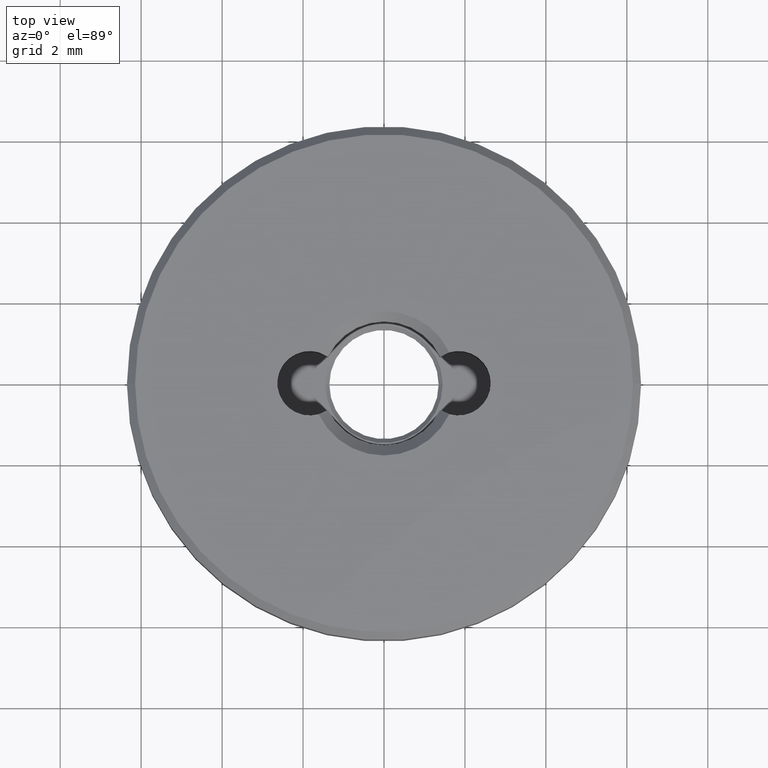
[diagram: clean part render]
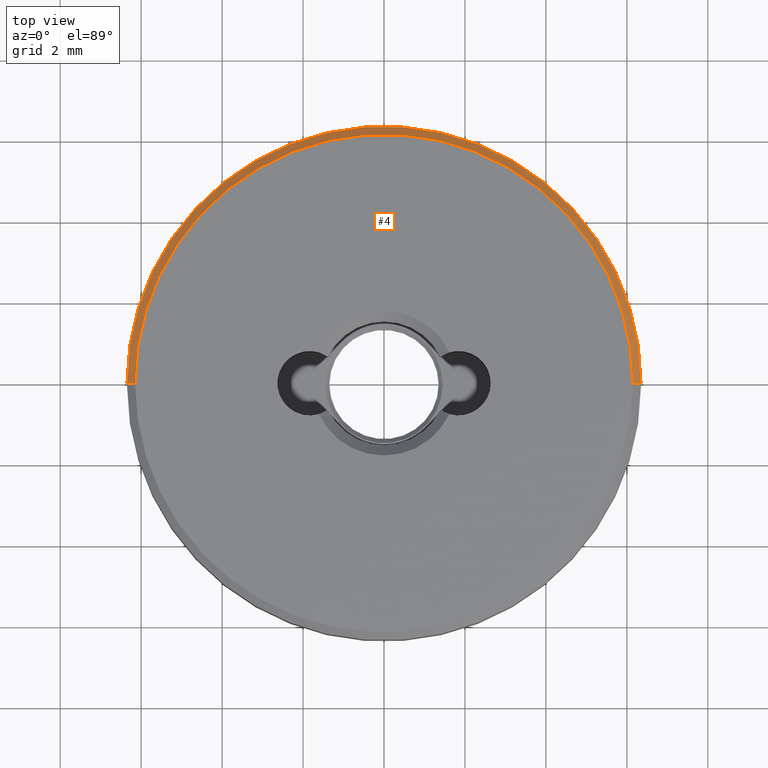
[diagram: same view with one face highlighted and labeled with its STEP entity id]
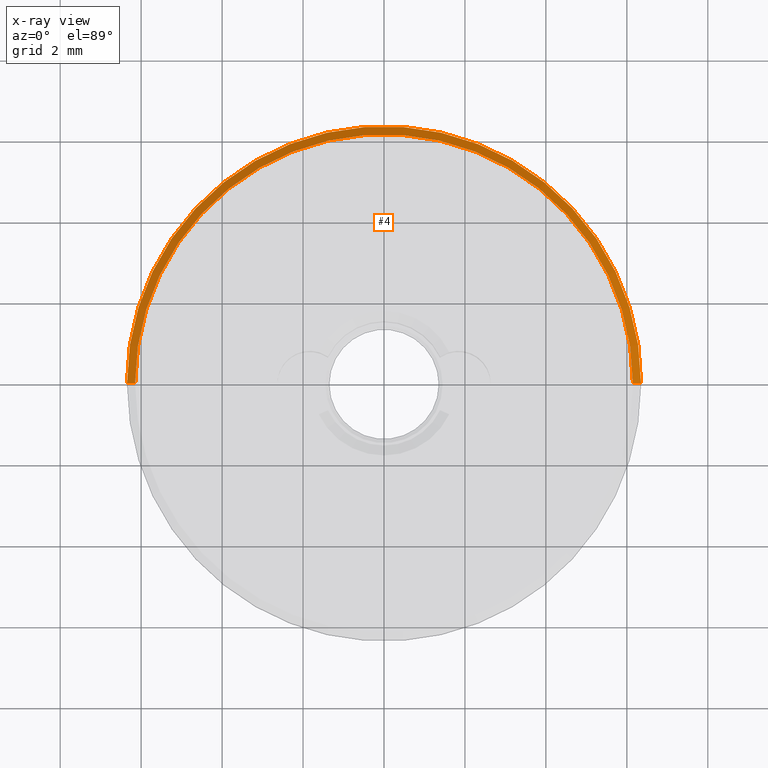
[diagram: x-ray of the same camera — body ghosted, the highlighted face saturated]
A machine part, top view. The second image highlights one B-rep face of the part: STEP entity #4.
The next image is the same camera in x-ray: the body ghosted, the highlighted face saturated — about 0% of this face is hidden behind the body in this view.
In plain terms, the highlighted conical surface has half-angle 45 deg.
Its self-contained STEP definition (entity closure, byte-faithful):
#2 = VECTOR ( 'NONE', #532, 1000.000000000000000 ) ;
#4 = ADVANCED_FACE ( 'NONE', ( #242 ), #486, .T. ) ;
#30 = CARTESIAN_POINT ( 'NONE',  ( 0.000000000000000000, 0.000000000000000000, 2.200000000000000178 ) ) ;
#74 = ORIENTED_EDGE ( 'NONE', *, *, #430, .T. ) ;
#76 = DIRECTION ( 'NONE',  ( 0.000000000000000000, 0.000000000000000000, -1.000000000000000000 ) ) ;
#80 = AXIS2_PLACEMENT_3D ( 'NONE', #616, #76, #410 ) ;
#92 = VERTEX_POINT ( 'NONE', #199 ) ;
#131 = CARTESIAN_POINT ( 'NONE',  ( 0.000000000000000000, 0.000000000000000000, 2.000000000000000444 ) ) ;
#170 = ORIENTED_EDGE ( 'NONE', *, *, #685, .F. ) ;
#174 = CARTESIAN_POINT ( 'NONE',  ( -6.349999999999999645, 0.000000000000000000, 2.000000000000000444 ) ) ;
#176 = VERTEX_POINT ( 'NONE', #476 ) ;
#199 = CARTESIAN_POINT ( 'NONE',  ( -6.149999999999999467, 0.000000000000000000, 2.200000000000000178 ) ) ;
#203 = EDGE_LOOP ( 'NONE', ( #583, #74, #579, #170 ) ) ;
#242 = FACE_OUTER_BOUND ( 'NONE', #203, .T. ) ;
#337 = VECTOR ( 'NONE', #496, 1000.000000000000000 ) ;
#341 = CARTESIAN_POINT ( 'NONE',  ( 6.149999999999999467, 7.531577814756219106E-16, 2.200000000000000178 ) ) ;
#348 = DIRECTION ( 'NONE',  ( 1.000000000000000000, 0.000000000000000000, 0.000000000000000000 ) ) ;
#360 = VERTEX_POINT ( 'NONE', #442 ) ;
#386 = VERTEX_POINT ( 'NONE', #174 ) ;
#410 = DIRECTION ( 'NONE',  ( -1.000000000000000000, 0.000000000000000000, 0.000000000000000000 ) ) ;
#421 = AXIS2_PLACEMENT_3D ( 'NONE', #30, #503, #570 ) ;
#430 = EDGE_CURVE ( 'NONE', #360, #176, #549, .T. ) ;
#442 = CARTESIAN_POINT ( 'NONE',  ( 6.149999999999999467, 7.654042494670954648E-16, 2.200000000000000178 ) ) ;
#476 = CARTESIAN_POINT ( 'NONE',  ( 6.349999999999999645, 7.776507174585692163E-16, 2.000000000000000444 ) ) ;
#486 = CONICAL_SURFACE ( 'NONE', #80, 6.149999999999999467, 0.7853981633974503884 ) ;
#487 = AXIS2_PLACEMENT_3D ( 'NONE', #131, #511, #348 ) ;
#496 = DIRECTION ( 'NONE',  ( 0.7071067811865490160, 8.659560562354950115E-17, -0.7071067811865459074 ) ) ;
#503 = DIRECTION ( 'NONE',  ( 0.000000000000000000, 0.000000000000000000, 1.000000000000000000 ) ) ;
#505 = EDGE_CURVE ( 'NONE', #360, #92, #637, .T. ) ;
#511 = DIRECTION ( 'NONE',  ( 0.000000000000000000, 0.000000000000000000, -1.000000000000000000 ) ) ;
#532 = DIRECTION ( 'NONE',  ( -0.7071067811865490160, 0.000000000000000000, -0.7071067811865459074 ) ) ;
#549 = LINE ( 'NONE', #341, #337 ) ;
#570 = DIRECTION ( 'NONE',  ( 1.000000000000000000, 0.000000000000000000, 0.000000000000000000 ) ) ;
#572 = CARTESIAN_POINT ( 'NONE',  ( -6.149999999999999467, 0.000000000000000000, 2.200000000000000178 ) ) ;
#578 = EDGE_CURVE ( 'NONE', #386, #176, #624, .T. ) ;
#579 = ORIENTED_EDGE ( 'NONE', *, *, #578, .F. ) ;
#583 = ORIENTED_EDGE ( 'NONE', *, *, #505, .F. ) ;
#616 = CARTESIAN_POINT ( 'NONE',  ( 0.000000000000000000, 0.000000000000000000, 2.200000000000000178 ) ) ;
#624 = CIRCLE ( 'NONE', #487, 6.349999999999999645 ) ;
#627 = LINE ( 'NONE', #572, #2 ) ;
#637 = CIRCLE ( 'NONE', #421, 6.149999999999999467 ) ;
#685 = EDGE_CURVE ( 'NONE', #92, #386, #627, .T. ) ;